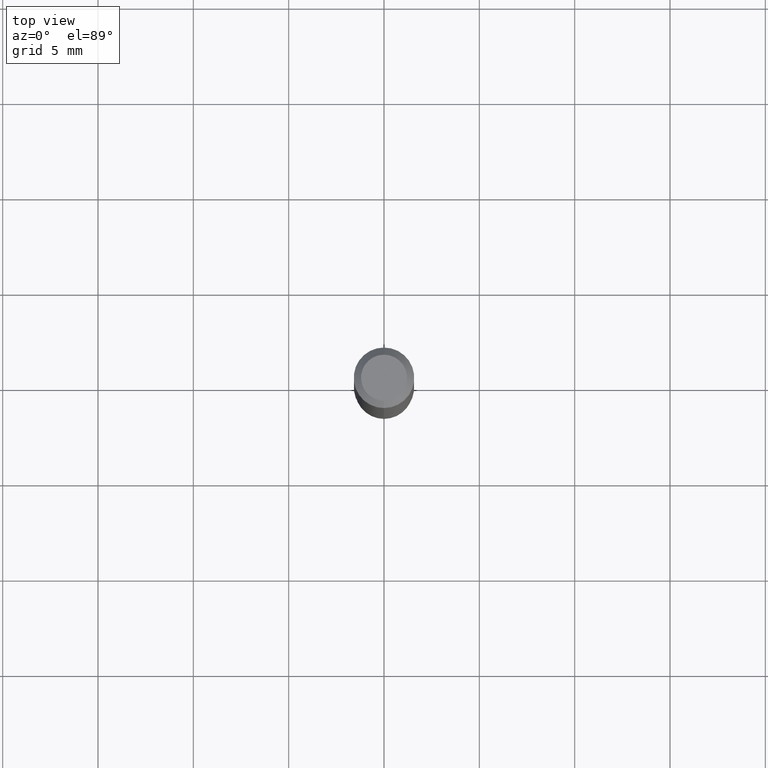
[diagram: clean part render]
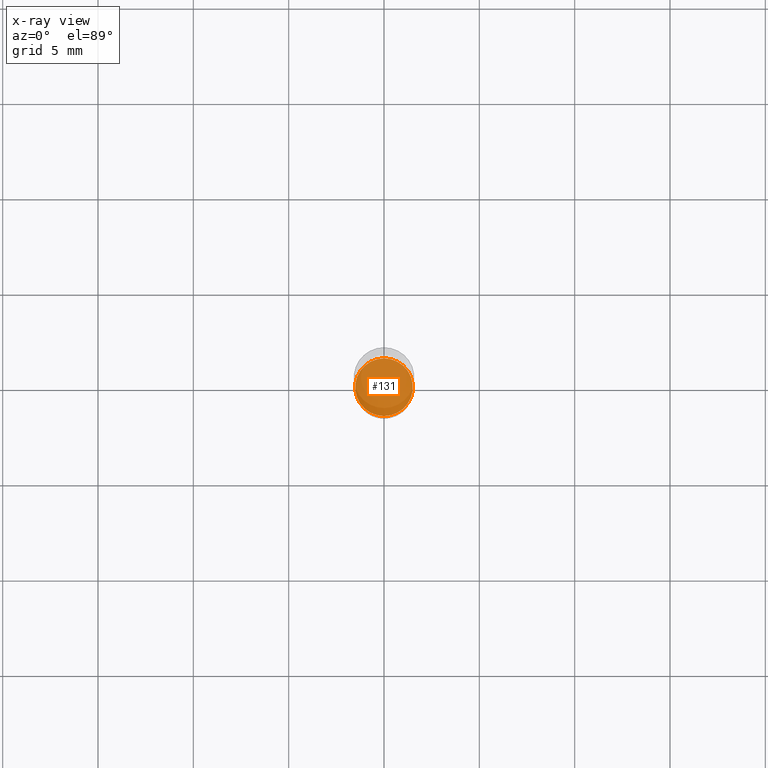
[diagram: x-ray — body ghosted, one internal face saturated and labeled with its STEP entity id]
A machine part, top view, then the same camera in x-ray: the body is ghosted and one INTERNAL B-rep face — a face not visible from any outside direction — is saturated and labeled: STEP entity #131.
In plain terms, the highlighted planar face has unit normal (-0, 0, 1).
Its self-contained STEP definition (entity closure, byte-faithful):
#45 = AXIS2_PLACEMENT_3D ( 'NONE', #419, #65, #453 ) ;
#60 = EDGE_CURVE ( 'NONE', #153, #304, #317, .T. ) ;
#64 = DIRECTION ( 'NONE',  ( -6.982962677686265922E-15, -1.000000000000000000, 4.591341165822291216E-15 ) ) ;
#65 = DIRECTION ( 'NONE',  ( -2.445415257485203581E-29, 3.491558023629251863E-15, 1.000000000000000000 ) ) ;
#90 = AXIS2_PLACEMENT_3D ( 'NONE', #363, #185, #64 ) ;
#106 = DIRECTION ( 'NONE',  ( -6.982962677686265922E-15, -1.000000000000000000, 4.591341165822291216E-15 ) ) ;
#131 = ADVANCED_FACE ( 'NONE', ( #294 ), #451, .F. ) ;
#153 = VERTEX_POINT ( 'NONE', #417 ) ;
#185 = DIRECTION ( 'NONE',  ( -2.445415257485203862E-29, 3.491558023629251863E-15, 1.000000000000000000 ) ) ;
#186 = CARTESIAN_POINT ( 'NONE',  ( 2.787773393533133019E-29, -3.980376146937347826E-15, -1.140000000000000124 ) ) ;
#285 = EDGE_LOOP ( 'NONE', ( #350, #416 ) ) ;
#294 = FACE_OUTER_BOUND ( 'NONE', #285, .T. ) ;
#298 = EDGE_CURVE ( 'NONE', #304, #153, #367, .T. ) ;
#304 = VERTEX_POINT ( 'NONE', #333 ) ;
#317 = CIRCLE ( 'NONE', #447, 0.05949999999999999734 ) ;
#333 = CARTESIAN_POINT ( 'NONE',  ( -4.154862793223048825E-16, -0.05950000000000398026, -1.139999999999999902 ) ) ;
#350 = ORIENTED_EDGE ( 'NONE', *, *, #298, .F. ) ;
#363 = CARTESIAN_POINT ( 'NONE',  ( 2.787773393533133019E-29, -3.980376146937347826E-15, -1.140000000000000124 ) ) ;
#367 = CIRCLE ( 'NONE', #90, 0.05949999999999999734 ) ;
#416 = ORIENTED_EDGE ( 'NONE', *, *, #60, .F. ) ;
#417 = CARTESIAN_POINT ( 'NONE',  ( 4.245492846166878976E-16, 0.05949999999999602135, -1.140000000000000346 ) ) ;
#419 = CARTESIAN_POINT ( 'NONE',  ( 2.787773393533133019E-29, -3.980376146937347826E-15, -1.140000000000000124 ) ) ;
#447 = AXIS2_PLACEMENT_3D ( 'NONE', #186, #462, #106 ) ;
#451 = PLANE ( 'NONE',  #45 ) ;
#453 = DIRECTION ( 'NONE',  ( -6.982962677686265922E-15, -1.000000000000000000, 3.491558023629251863E-15 ) ) ;
#462 = DIRECTION ( 'NONE',  ( -2.445415257485203862E-29, 3.491558023629251863E-15, 1.000000000000000000 ) ) ;